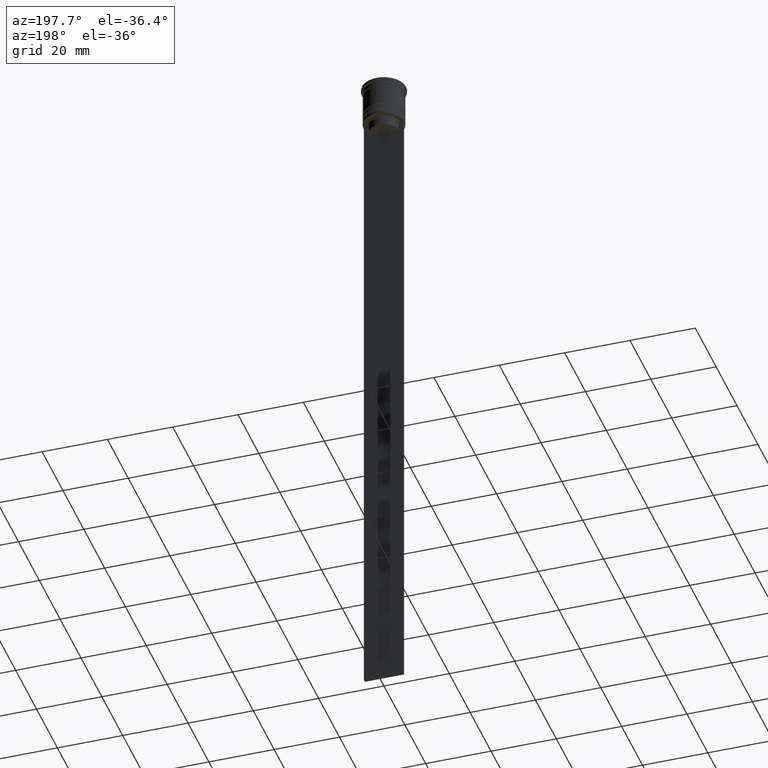
[diagram: clean part render]
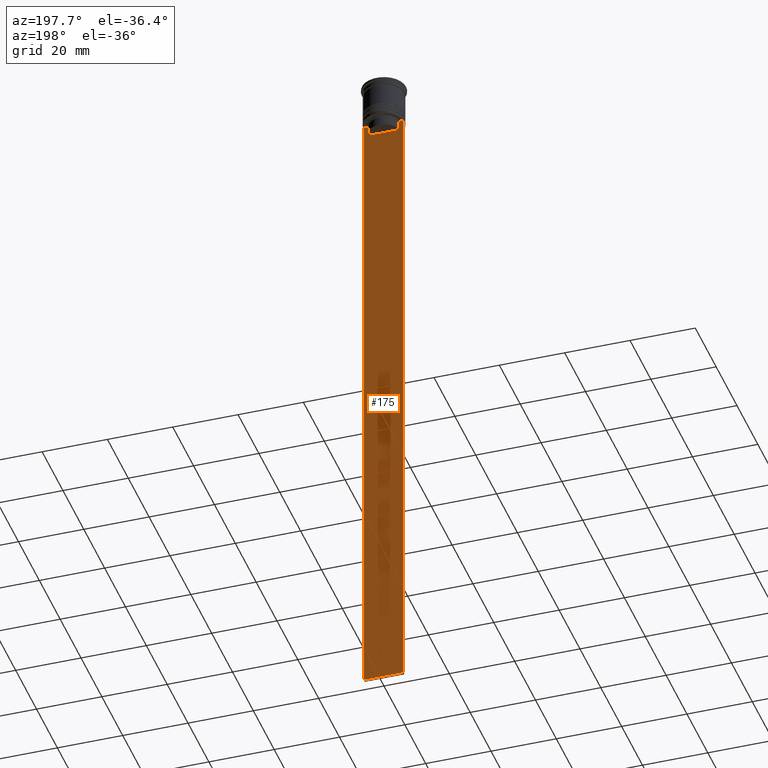
[diagram: same view with one face highlighted and labeled with its STEP entity id]
A machine part, auxiliary view. The second image highlights one B-rep face of the part: STEP entity #175.
In plain terms, the highlighted planar face has unit normal (0, -1, -0).
Its self-contained STEP definition (entity closure, byte-faithful):
#42 = CARTESIAN_POINT ( 'NONE',  ( -4.623040125285526436, 0.4999999999999982792, -13.00000000000000178 ) ) ;
#52 = LINE ( 'NONE', #2215, #984 ) ;
#101 = EDGE_CURVE ( 'NONE', #846, #1327, #52, .T. ) ;
#131 = CARTESIAN_POINT ( 'NONE',  ( -4.623040125285526436, 0.4999999999999982792, 0.000000000000000000 ) ) ;
#141 = CARTESIAN_POINT ( 'NONE',  ( 4.623040125285526436, 0.4999999999999982792, 0.000000000000000000 ) ) ;
#173 = CARTESIAN_POINT ( 'NONE',  ( 5.125670687822231564, 0.4999999999999982792, -12.50000000000000000 ) ) ;
#175 = ADVANCED_FACE ( 'NONE', ( #1336 ), #1857, .F. ) ;
#214 = DIRECTION ( 'NONE',  ( 1.000000000000000000, 0.000000000000000000, 0.000000000000000000 ) ) ;
#226 = EDGE_CURVE ( 'NONE', #1330, #1282, #2121, .T. ) ;
#239 = ORIENTED_EDGE ( 'NONE', *, *, #2120, .T. ) ;
#269 = VERTEX_POINT ( 'NONE', #870 ) ;
#289 = DIRECTION ( 'NONE',  ( 0.000000000000000000, 0.000000000000000000, -1.000000000000000000 ) ) ;
#290 = LINE ( 'NONE', #1199, #912 ) ;
#297 = VECTOR ( 'NONE', #289, 1000.000000000000000 ) ;
#316 = DIRECTION ( 'NONE',  ( -0.000000000000000000, -0.000000000000000000, 1.000000000000000000 ) ) ;
#317 = EDGE_CURVE ( 'NONE', #1292, #846, #1554, .T. ) ;
#422 = LINE ( 'NONE', #1662, #1827 ) ;
#483 = DIRECTION ( 'NONE',  ( 1.000000000000000000, 0.000000000000000000, 0.000000000000000000 ) ) ;
#543 = ORIENTED_EDGE ( 'NONE', *, *, #1639, .T. ) ;
#559 = EDGE_CURVE ( 'NONE', #1282, #2087, #790, .T. ) ;
#564 = ORIENTED_EDGE ( 'NONE', *, *, #2265, .T. ) ;
#612 = CARTESIAN_POINT ( 'NONE',  ( 0.000000000000000000, 0.4999999999999987232, -15.50000000000000000 ) ) ;
#626 = DIRECTION ( 'NONE',  ( 0.000000000000000000, 0.000000000000000000, -1.000000000000000000 ) ) ;
#646 = LINE ( 'NONE', #1372, #1355 ) ;
#704 = ORIENTED_EDGE ( 'NONE', *, *, #101, .T. ) ;
#719 = CARTESIAN_POINT ( 'NONE',  ( -4.623040125285526436, 0.4999999999999987232, -15.50000000000000000 ) ) ;
#775 = CARTESIAN_POINT ( 'NONE',  ( -4.958169823806762189, 0.4999999999999982792, -12.66670956677067750 ) ) ;
#790 = LINE ( 'NONE', #612, #2305 ) ;
#793 = B_SPLINE_CURVE_WITH_KNOTS ( 'NONE', 3,
 ( #1489, #775, #968, #42 ),
 .UNSPECIFIED., .F., .F.,
 ( 4, 4 ),
 ( 0.008759809102772707357, 0.009468778395565351919 ),
 .UNSPECIFIED. ) ;
#796 = CARTESIAN_POINT ( 'NONE',  ( 6.000000000000016875, 0.4999999999999982792, -0.4584054212077061097 ) ) ;
#846 = VERTEX_POINT ( 'NONE', #1625 ) ;
#858 = ORIENTED_EDGE ( 'NONE', *, *, #1753, .F. ) ;
#870 = CARTESIAN_POINT ( 'NONE',  ( -5.125670687822231564, 0.4999999999999982792, -12.50000000000000000 ) ) ;
#912 = VECTOR ( 'NONE', #1948, 1000.000000000000000 ) ;
#946 = B_SPLINE_CURVE_WITH_KNOTS ( 'NONE', 3,
 ( #2307, #1770, #2320, #173 ),
 .UNSPECIFIED., .F., .F.,
 ( 4, 4 ),
 ( 0.02203698174624552433, 0.02275222543365896036 ),
 .UNSPECIFIED. ) ;
#958 = DIRECTION ( 'NONE',  ( 0.000000000000000000, 0.000000000000000000, -1.000000000000000000 ) ) ;
#968 = CARTESIAN_POINT ( 'NONE',  ( -4.790630915080666519, 0.4999999999999982792, -12.83338087185995313 ) ) ;
#984 = VECTOR ( 'NONE', #958, 1000.000000000000000 ) ;
#992 = CARTESIAN_POINT ( 'NONE',  ( -5.999999999999983125, 0.4999999999999982792, -212.5000000000000284 ) ) ;
#1157 = CARTESIAN_POINT ( 'NONE',  ( -5.999999999999983125, 0.4999999999999985012, -12.50000000000000000 ) ) ;
#1175 = AXIS2_PLACEMENT_3D ( 'NONE', #796, #1513, #626 ) ;
#1199 = CARTESIAN_POINT ( 'NONE',  ( 6.000000000000016875, 0.4999999999999982792, -212.5000000000000284 ) ) ;
#1202 = VERTEX_POINT ( 'NONE', #992 ) ;
#1215 = ORIENTED_EDGE ( 'NONE', *, *, #559, .T. ) ;
#1268 = ORIENTED_EDGE ( 'NONE', *, *, #317, .T. ) ;
#1282 = VERTEX_POINT ( 'NONE', #719 ) ;
#1292 = VERTEX_POINT ( 'NONE', #2154 ) ;
#1317 = CARTESIAN_POINT ( 'NONE',  ( 4.623040125285526436, 0.4999999999999982792, -13.00000000000000178 ) ) ;
#1327 = VERTEX_POINT ( 'NONE', #2336 ) ;
#1330 = VERTEX_POINT ( 'NONE', #1762 ) ;
#1336 = FACE_OUTER_BOUND ( 'NONE', #2321, .T. ) ;
#1355 = VECTOR ( 'NONE', #2084, 1000.000000000000000 ) ;
#1372 = CARTESIAN_POINT ( 'NONE',  ( 6.000000000000016875, 0.4999999999999982792, -12.50000000000000000 ) ) ;
#1430 = ORIENTED_EDGE ( 'NONE', *, *, #1550, .T. ) ;
#1433 = CARTESIAN_POINT ( 'NONE',  ( 4.623040125285526436, 0.4999999999999987232, -15.50000000000000000 ) ) ;
#1489 = CARTESIAN_POINT ( 'NONE',  ( -5.125670687822231564, 0.4999999999999982792, -12.50000000000000000 ) ) ;
#1513 = DIRECTION ( 'NONE',  ( 0.000000000000000000, -1.000000000000000000, -0.000000000000000000 ) ) ;
#1514 = ORIENTED_EDGE ( 'NONE', *, *, #226, .T. ) ;
#1550 = EDGE_CURVE ( 'NONE', #2170, #269, #646, .T. ) ;
#1551 = LINE ( 'NONE', #141, #1794 ) ;
#1554 = LINE ( 'NONE', #2096, #1657 ) ;
#1557 = EDGE_CURVE ( 'NONE', #1327, #1202, #290, .T. ) ;
#1579 = ORIENTED_EDGE ( 'NONE', *, *, #1557, .T. ) ;
#1625 = CARTESIAN_POINT ( 'NONE',  ( 6.000000000000016875, 0.4999999999999982792, -12.50000000000000000 ) ) ;
#1639 = EDGE_CURVE ( 'NONE', #2167, #1292, #946, .T. ) ;
#1657 = VECTOR ( 'NONE', #483, 1000.000000000000000 ) ;
#1662 = CARTESIAN_POINT ( 'NONE',  ( -5.999999999999983125, 0.4999999999999982792, -0.4584054212077061097 ) ) ;
#1695 = DIRECTION ( 'NONE',  ( 0.000000000000000000, 0.000000000000000000, -1.000000000000000000 ) ) ;
#1753 = EDGE_CURVE ( 'NONE', #2170, #1202, #422, .T. ) ;
#1762 = CARTESIAN_POINT ( 'NONE',  ( -4.623040125285526436, 0.4999999999999982792, -13.00000000000000178 ) ) ;
#1770 = CARTESIAN_POINT ( 'NONE',  ( 4.790630799407576745, 0.4999999999999982792, -12.83338098686239093 ) ) ;
#1794 = VECTOR ( 'NONE', #316, 1000.000000000000000 ) ;
#1827 = VECTOR ( 'NONE', #1695, 1000.000000000000000 ) ;
#1857 = PLANE ( 'NONE',  #1175 ) ;
#1948 = DIRECTION ( 'NONE',  ( -1.000000000000000000, 0.000000000000000000, 0.000000000000000000 ) ) ;
#2084 = DIRECTION ( 'NONE',  ( 1.000000000000000000, 0.000000000000000000, 0.000000000000000000 ) ) ;
#2087 = VERTEX_POINT ( 'NONE', #1433 ) ;
#2096 = CARTESIAN_POINT ( 'NONE',  ( 6.000000000000016875, 0.4999999999999982792, -12.50000000000000000 ) ) ;
#2120 = EDGE_CURVE ( 'NONE', #269, #1330, #793, .T. ) ;
#2121 = LINE ( 'NONE', #131, #297 ) ;
#2154 = CARTESIAN_POINT ( 'NONE',  ( 5.125670687822231564, 0.4999999999999982792, -12.50000000000000000 ) ) ;
#2167 = VERTEX_POINT ( 'NONE', #1317 ) ;
#2170 = VERTEX_POINT ( 'NONE', #1157 ) ;
#2215 = CARTESIAN_POINT ( 'NONE',  ( 6.000000000000016875, 0.4999999999999982792, -0.4584054212077061097 ) ) ;
#2265 = EDGE_CURVE ( 'NONE', #2087, #2167, #1551, .T. ) ;
#2305 = VECTOR ( 'NONE', #214, 1000.000000000000000 ) ;
#2307 = CARTESIAN_POINT ( 'NONE',  ( 4.623040125285526436, 0.4999999999999982792, -13.00000000000000178 ) ) ;
#2320 = CARTESIAN_POINT ( 'NONE',  ( 4.958169719475987058, 0.4999999999999982792, -12.66670967060858111 ) ) ;
#2321 = EDGE_LOOP ( 'NONE', ( #1430, #239, #1514, #1215, #564, #543, #1268, #704, #1579, #858 ) ) ;
#2336 = CARTESIAN_POINT ( 'NONE',  ( 6.000000000000016875, 0.4999999999999982792, -212.5000000000000284 ) ) ;